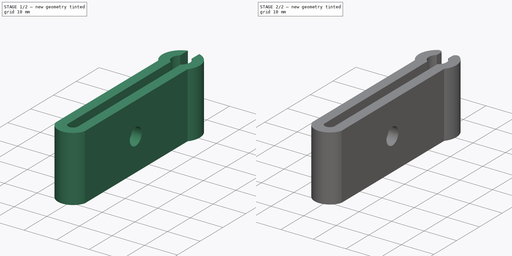
[diagram: build sequence overview — one tinted view per stage of 2, left to right]
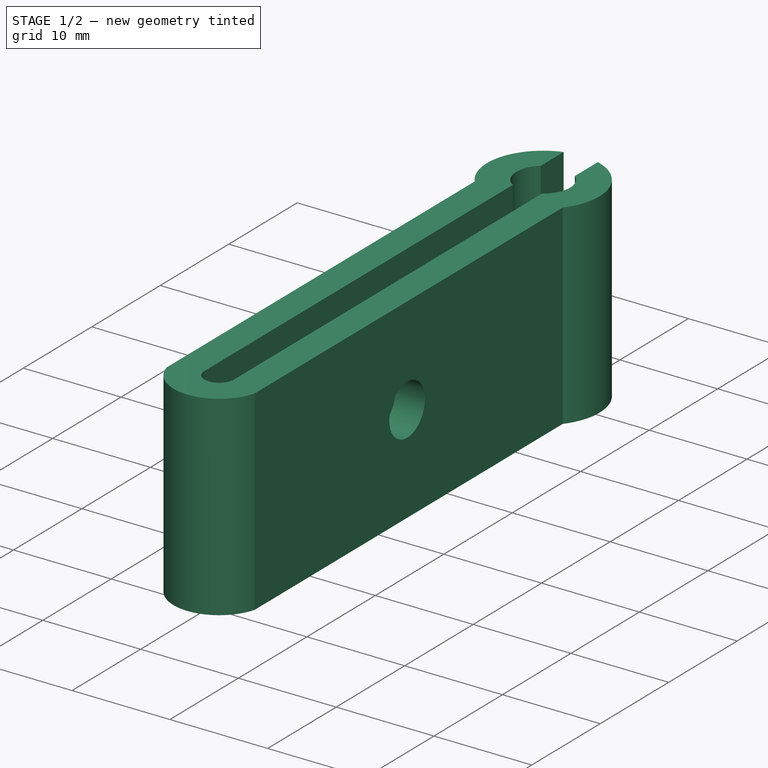
[diagram: stage 1 of 2 — iso view after this stage's code; geometry added in this stage tinted green]
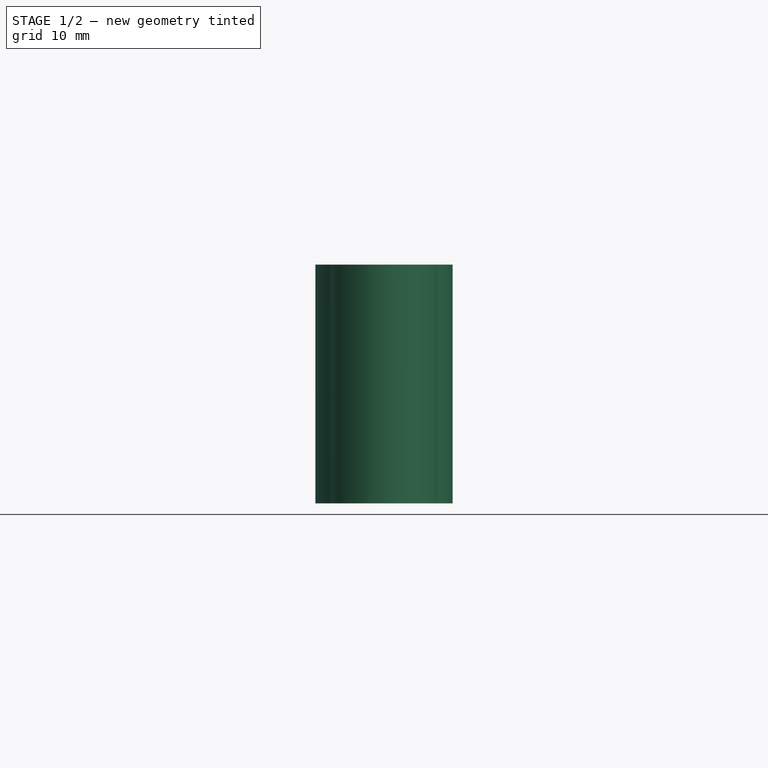
[diagram: stage 1 of 2 — front view after this stage's code; geometry added in this stage tinted green]
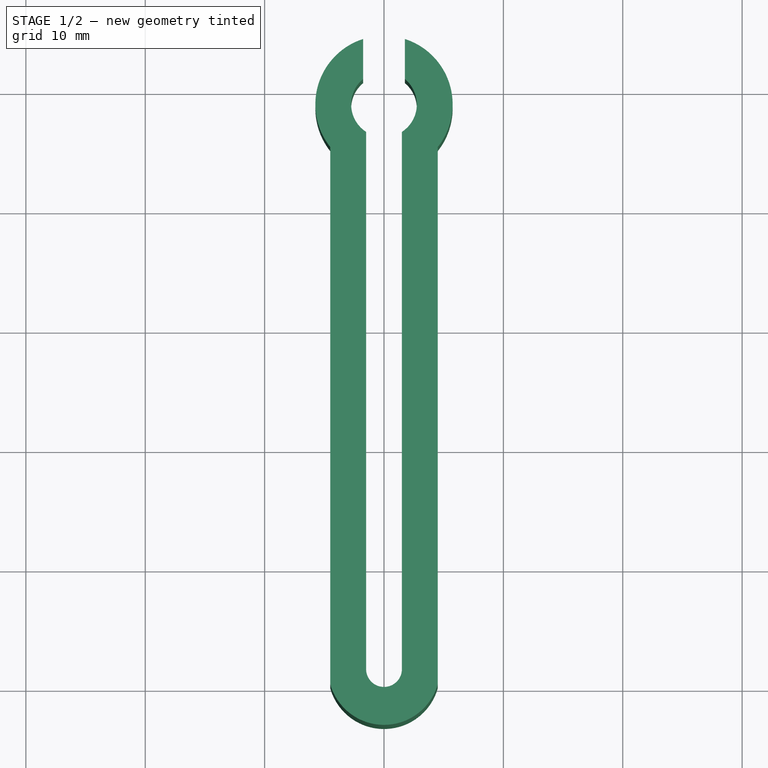
[diagram: stage 1 of 2 — top view after this stage's code; geometry added in this stage tinted green]
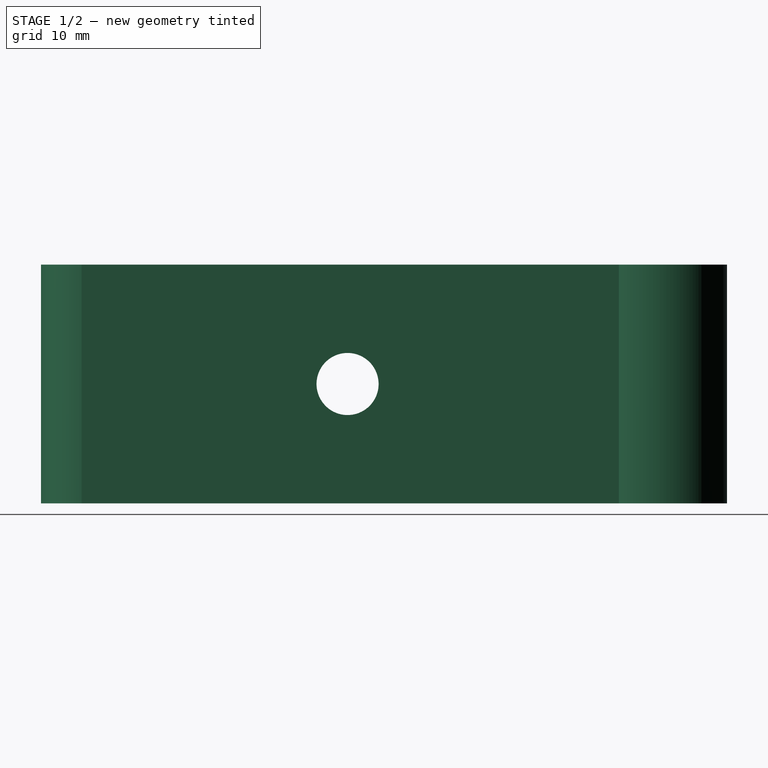
[diagram: stage 1 of 2 — right view after this stage's code; geometry added in this stage tinted green]
FCSTD DOCUMENT  (FreeCAD 0.17R13541 (Git))
Label: BackLightHolder
License: All rights reserved
LicenseURL: http://en.wikipedia.org/wiki/All_rights_reserved
objects: Sketcher::SketchObject×2, PartDesign::Pad×1, PartDesign::Pocket×1, PartDesign::Fillet×1, PartDesign::Body×1
note: 8 computed .brp shape members not serialized (recipe doc carries the construction recipe); baked Part::Feature solids carry a one-line shape summary decoded from their .brp

FEATURE [Sketcher::SketchObject] Sketch
  MapMode = 5
  Support = -> [XY_Plane]
  expr: Constraints[31] = Constraints.bikeBarRadius + Constraints.thickness
  expr: Constraints[35] = Constraints.bikeBarRadius * 2 - 2mm
  expr: Constraints.bikeBarRadius = 5.5 / 2
  sketch-geometry (12):
    g0: ArcOfCircle CenterX=0 CenterY=1.5 CenterZ=0 NormalX=0 NormalY=0 NormalZ=1 AngleXU=0 Radius=1.5 StartAngle=3.14159 EndAngle=6.28319
    g1: LineSegment StartX=1.5 StartY=1.5 StartZ=0 EndX=1.5 EndY=46.5 EndZ=0
    g2: ArcOfCircle CenterX=0 CenterY=48.8049 CenterZ=0 NormalX=0 NormalY=0 NormalZ=1 AngleXU=0 Radius=2.75 StartAngle=5.28932 EndAngle=7.16421
    g3: LineSegment StartX=1.75 StartY=50.9262 StartZ=0 EndX=1.75 EndY=54.2821 EndZ=0
    g4: ArcOfCircle CenterX=0 CenterY=48.8049 CenterZ=0 NormalX=0 NormalY=0 NormalZ=1 AngleXU=0 Radius=5.75 StartAngle=5.61123 EndAngle=7.54473
    g5: LineSegment StartX=4.5 StartY=45.2254 StartZ=0 EndX=4.5 EndY=0.225431 EndZ=0
    g6: ArcOfCircle CenterX=0 CenterY=1.5 CenterZ=0 NormalX=0 NormalY=0 NormalZ=1 AngleXU=0 Radius=4.67702 StartAngle=3.4176 EndAngle=6.00718
    g7: LineSegment StartX=-1.5 StartY=1.5 StartZ=0 EndX=-1.5 EndY=46.5 EndZ=0
    g8: LineSegment StartX=-4.5 StartY=0.225431 StartZ=0 EndX=-4.5 EndY=45.2254 EndZ=0
    g9: ArcOfCircle CenterX=0 CenterY=48.8049 CenterZ=0 NormalX=0 NormalY=0 NormalZ=1 AngleXU=0 Radius=2.75 StartAngle=2.26057 EndAngle=4.13546
    g10: ArcOfCircle CenterX=0 CenterY=48.8049 CenterZ=0 NormalX=0 NormalY=0 NormalZ=1 AngleXU=0 Radius=5.75 StartAngle=1.88005 EndAngle=3.81354
    g11: LineSegment StartX=-1.75 StartY=54.2821 StartZ=0 EndX=-1.75 EndY=50.9262 EndZ=0
  constraints (38):
    c: PointOnObject(g-1,g0)
    c: Coincident(g1,g0)
    c: Vertical(g1)
    c: Coincident(g2,g1)
    c: Coincident(g3,g2)
    c: Vertical(g3)
    c: Coincident(g4,g2)
    c: Coincident(g4,g3)
    c: Coincident(g5,g4)
    c: Vertical(g5)
    c: Coincident(g6,g0)
    c: Coincident(g6,g5)
    c: Coincident(g7,g0)
    c: Vertical(g7)
    c: Coincident(g8,g6)
    c: Vertical(g8)
    c: Coincident(g9,g2)
    c: Coincident(g9,g7)
    c: Coincident(g10,g2)
    c: Coincident(g10,g8)
    c: Coincident(g11,g10)
    c: Coincident(g11,g9)
    c: Vertical(g11)
    c: DistanceX(g0,g5) = 3  'thickness'
    c: DistanceX(g0,g0) = 3
    c: PointOnObject(g2,g-2)
    c: Equal(g1,g8)
    c: Equal(g8,g7)
    c: Equal(g7,g5)
    c: Radius(g2) = 2.75  'bikeBarRadius'
    c: Equal(g2,g9)
    c: Radius(g4) = 5.75
    c: Equal(g4,g10)
    c: PointOnObject(g0,g-2)
    c: Equal(g11,g3)
    c: DistanceX(g10,g3) = 3.5
    c: Horizontal(g0,g0)
    c: DistanceY(g8,g8) = 45  'length'
FEATURE [PartDesign::Pad] Pad
  Length = 20
  Length2 = 100
  Profile = -> Sketch
  Type = 0
FEATURE [Sketcher::SketchObject] Sketch001
  MapMode = 5
  Placement = pos=(4.5,0,0) rot=(0.57735,0.57735,0.57735;2.0944rad)
  Support = -> [Pad]
  expr: Constraints[1] = Pad.Length / 2
  expr: Constraints[0] = Sketch.Constraints.length / 2
  sketch-geometry (1):
    g0: Circle CenterX=22.5 CenterY=10 CenterZ=0 NormalX=0 NormalY=0 NormalZ=1 AngleXU=0 Radius=2.6
  constraints (3):
    c: DistanceX(g-1,g0) = 22.5
    c: DistanceY(g-1,g0) = 10
    c: Radius(g0) = 2.6
FEATURE [PartDesign::Pocket] Pocket
  BaseFeature = -> Pad
  Length = 5
  Length2 = 100
  Profile = -> Sketch001
  Type = 1
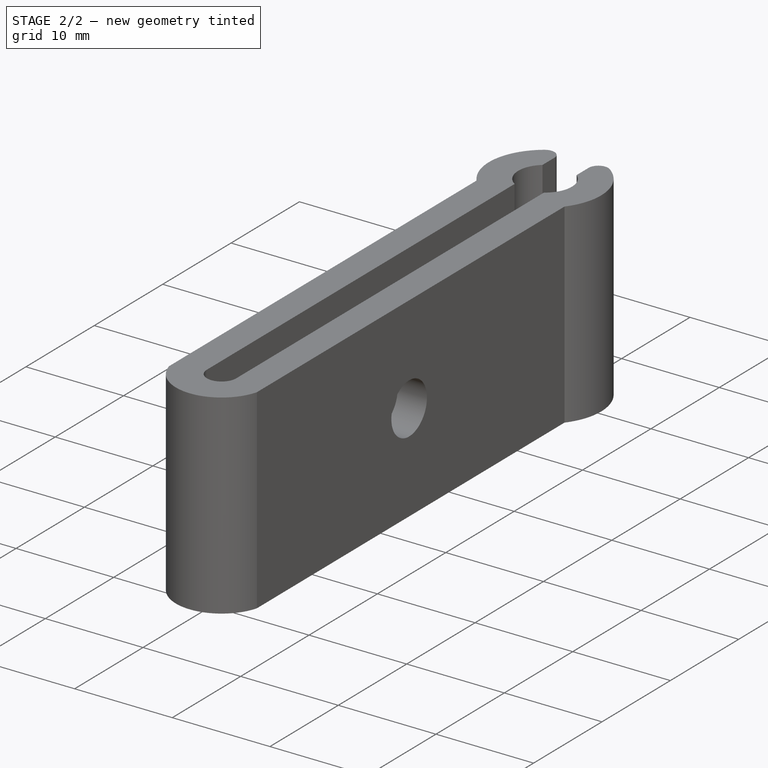
[diagram: stage 2 of 2 — iso view after this stage's code; geometry added in this stage tinted green]
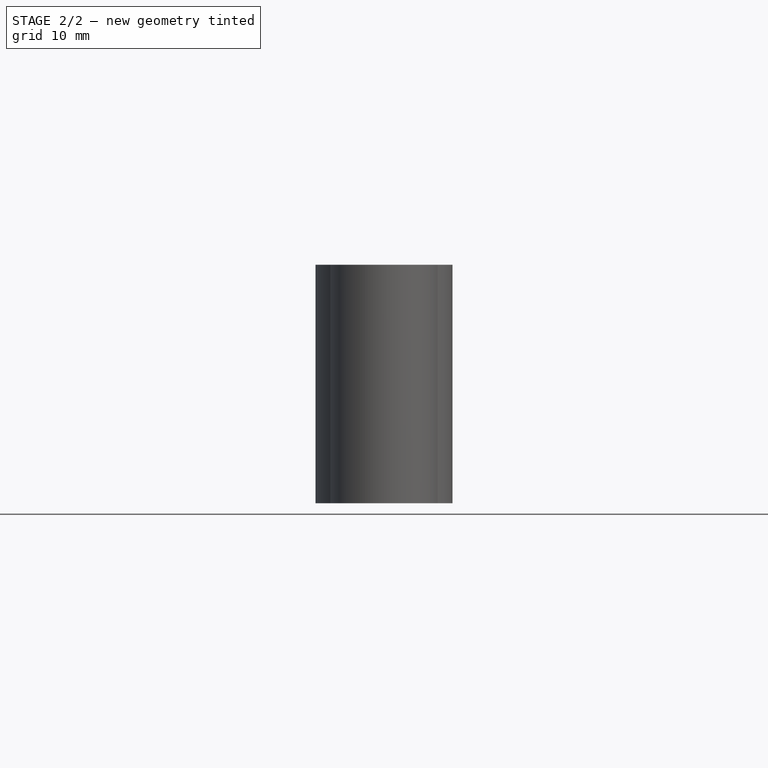
[diagram: stage 2 of 2 — front view after this stage's code; geometry added in this stage tinted green]
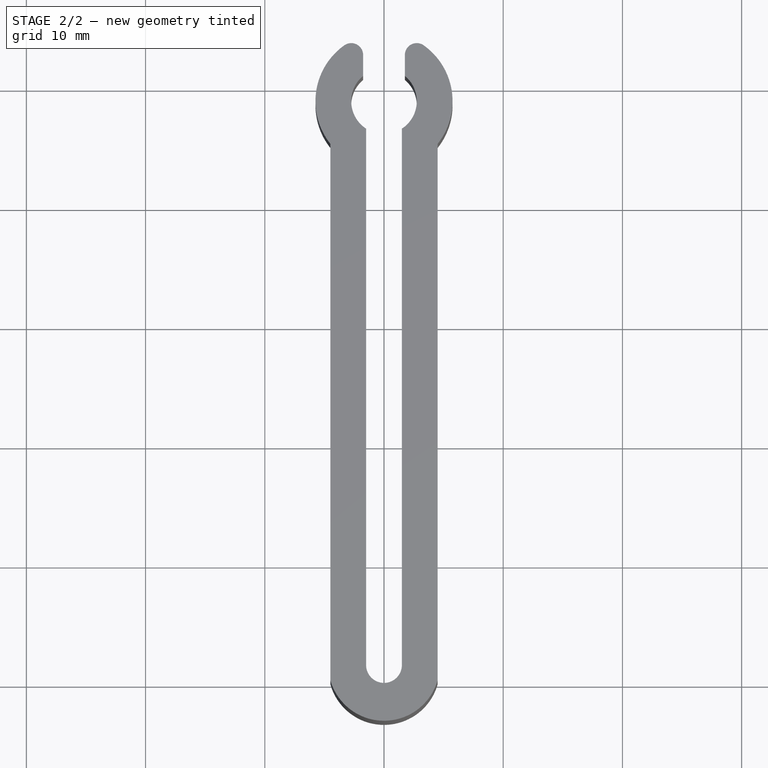
[diagram: stage 2 of 2 — top view after this stage's code; geometry added in this stage tinted green]
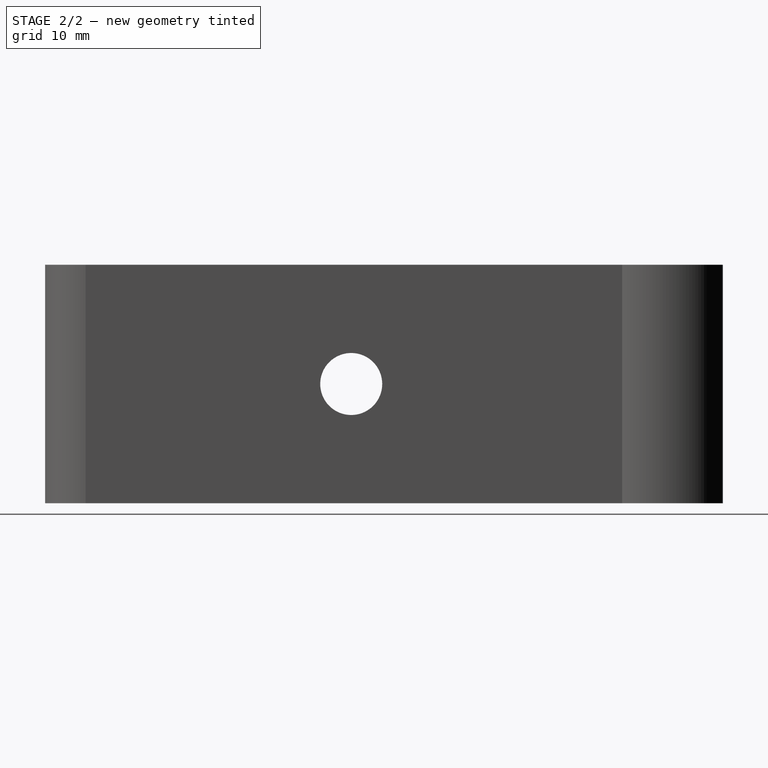
[diagram: stage 2 of 2 — right view after this stage's code; geometry added in this stage tinted green]
FEATURE [PartDesign::Fillet] Fillet
  Base = -> Pocket [Edge42,Edge37]
  BaseFeature = -> Pocket
  Radius = 1
FEATURE [PartDesign::Body] Body
  Group = -> [Sketch,Pad,Sketch001,Pocket,Fillet]
  Origin = -> Origin
  Tip = -> Fillet
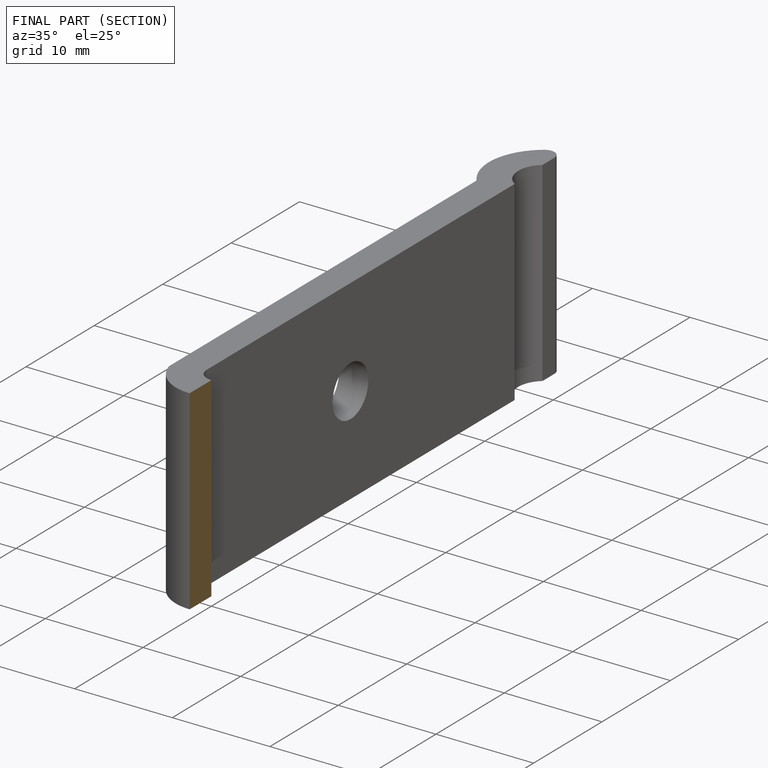
[diagram: finished part — half-section view (interior)]
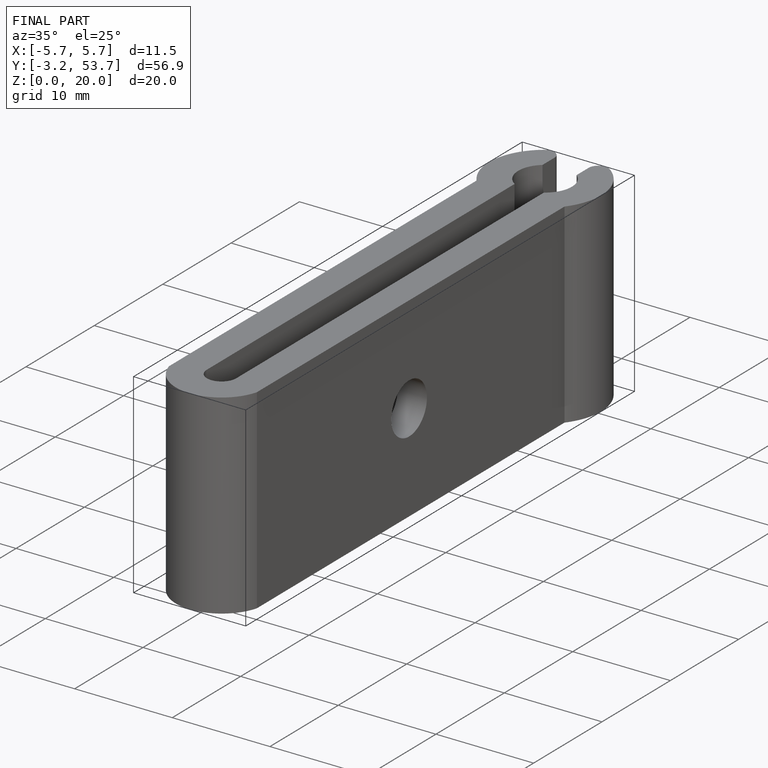
[diagram: finished part — iso view with bounding-box wireframe]
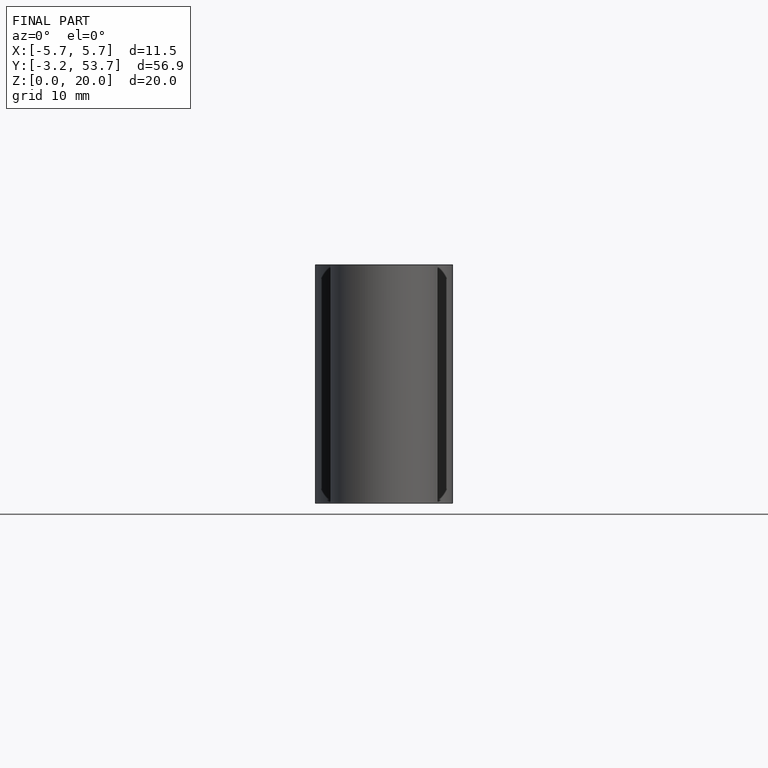
[diagram: finished part — front view with bounding-box wireframe]
